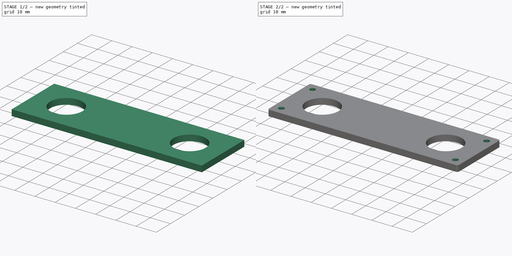
[diagram: build sequence overview — one tinted view per stage of 2, left to right]
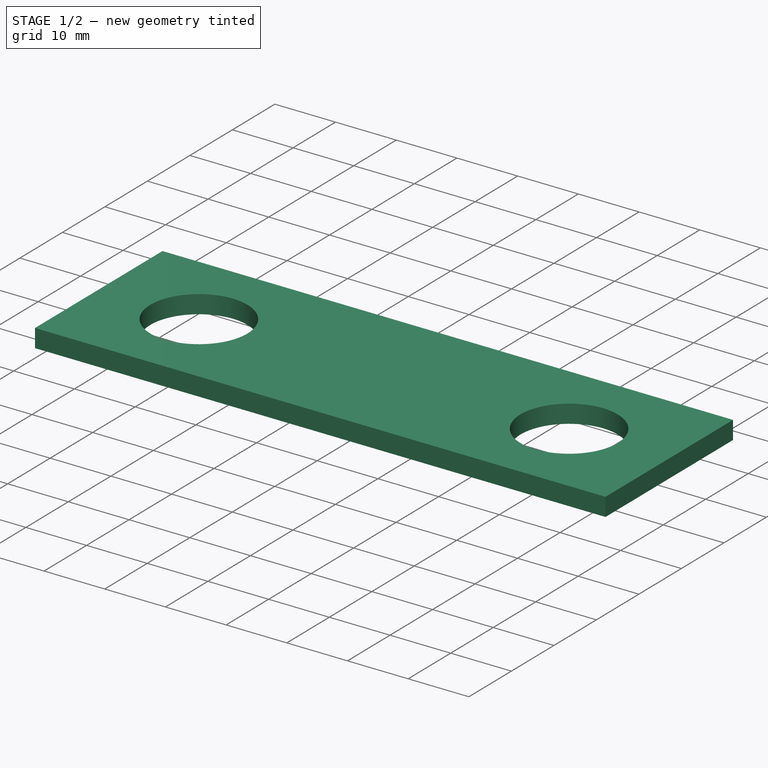
[diagram: stage 1 of 2 — iso view after this stage's code; geometry added in this stage tinted green]
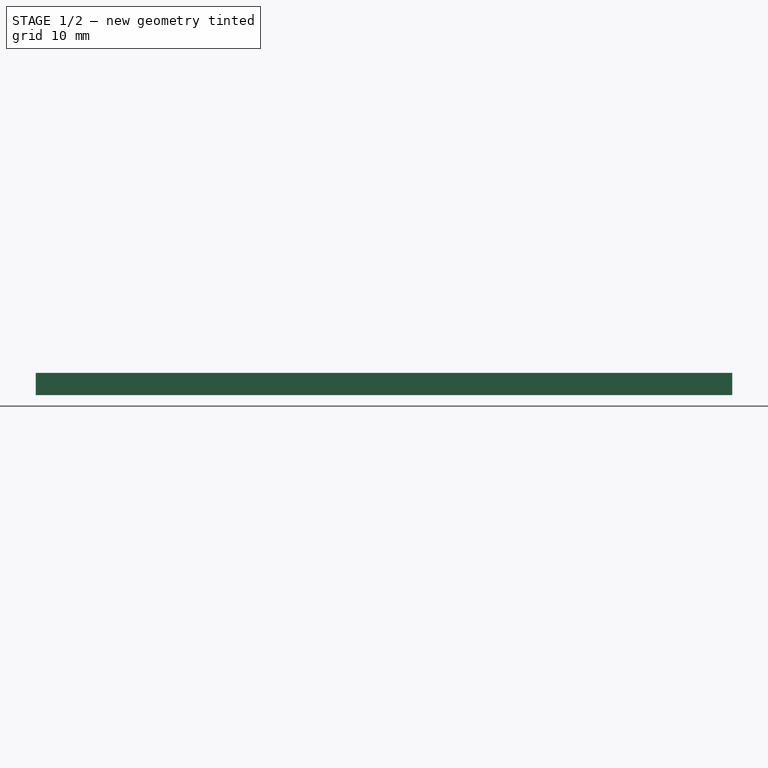
[diagram: stage 1 of 2 — front view after this stage's code; geometry added in this stage tinted green]
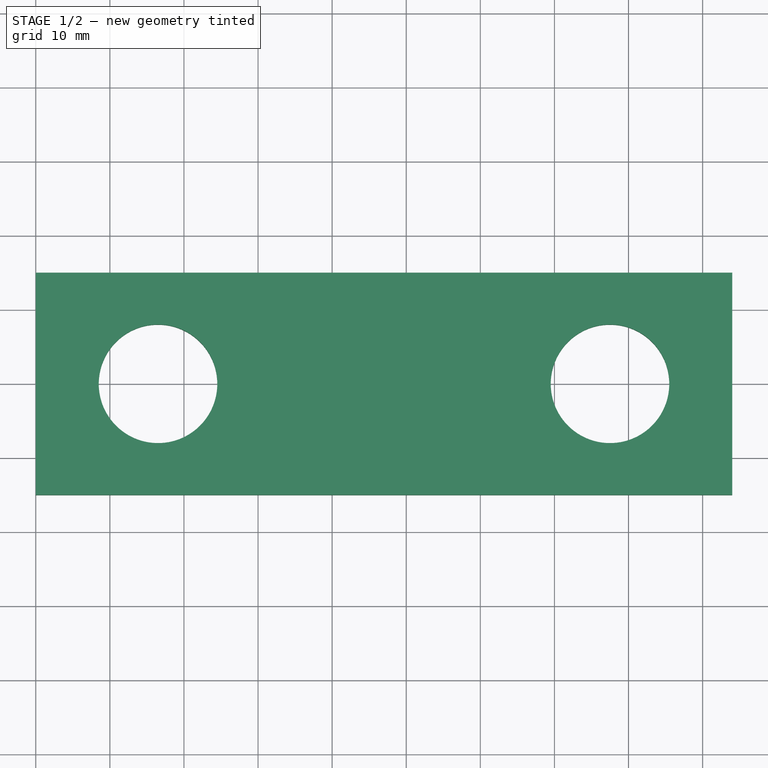
[diagram: stage 1 of 2 — top view after this stage's code; geometry added in this stage tinted green]
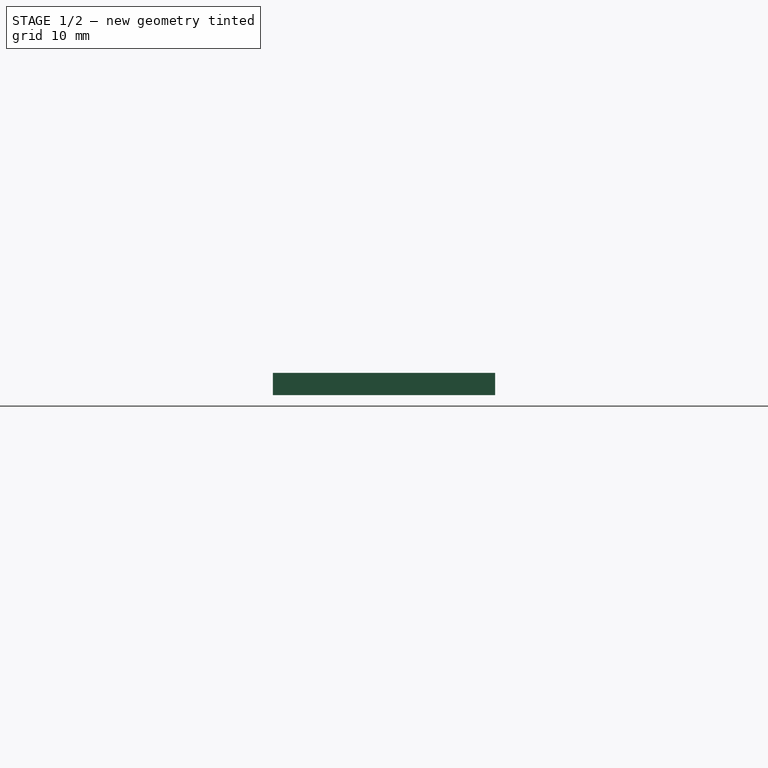
[diagram: stage 1 of 2 — right view after this stage's code; geometry added in this stage tinted green]
FCSTD DOCUMENT  (FreeCAD 0.19R24267 +148 (Git))
Label: elp_top_case
License: All rights reserved
LicenseURL: http://en.wikipedia.org/wiki/All_rights_reserved
objects: Sketcher::SketchObject×3, PartDesign::Hole×2, PartDesign::Pad×1, PartDesign::Fillet×1, PartDesign::Body×1
note: 12 computed .brp shape members not serialized (recipe doc carries the construction recipe); baked Part::Feature solids carry a one-line shape summary decoded from their .brp

FEATURE [Sketcher::SketchObject] Sketch006
  FullyConstrained = true
  MapMode = 5
  Placement = pos=(0,0,-13) rot=(1,0,0;3.14159rad)
  sketch-geometry (4):
    g0: LineSegment StartX=60 StartY=15 StartZ=0 EndX=154 EndY=15 EndZ=0
    g1: LineSegment StartX=60 StartY=-15 StartZ=0 EndX=154 EndY=-15 EndZ=0
    g2: LineSegment StartX=154 StartY=15 StartZ=0 EndX=154 EndY=-15 EndZ=0
    g3: LineSegment StartX=60 StartY=15 StartZ=0 EndX=60 EndY=-15 EndZ=0
  constraints (12):
    c: Horizontal(g0)
    c: Horizontal(g1)
    c: Vertical(g2)
    c: Vertical(g3)
    c: Coincident(g0,g3)
    c: Coincident(g1,g3)
    c: Coincident(g1,g2)
    c: Coincident(g2,g0)
    c: DistanceX(g1,g1) = 94
    c: DistanceY(g2,g2) = 30
    c: DistanceY(g1,g-1) = 15
    c: DistanceX(g-1,g1) = 60
FEATURE [PartDesign::Pad] Pad002
  Direction = (1,1,1)
  Length = 3
  Length2 = 100
  Placement = pos=(0,0,-13) rot=(1,0,0;3.14159rad)
  Profile = -> Sketch006
  Reversed = true
  Type = 0
FEATURE [Sketcher::SketchObject] Sketch007  label="holes"
  FullyConstrained = true
  MapMode = 5
  Placement = pos=(0,0,-13) rot=(1,0,0;3.14159rad)
  Support = -> [Pad002]
  sketch-geometry (5):
    g0: GeomPoint X=107 Y=0 Z=0
    g1: Circle CenterX=64 CenterY=-11 CenterZ=0 NormalX=0 NormalY=0 NormalZ=1 AngleXU=0 Radius=1
    g2: Circle CenterX=64 CenterY=11 CenterZ=0 NormalX=0 NormalY=0 NormalZ=1 AngleXU=0 Radius=1
    g3: Circle CenterX=150 CenterY=11 CenterZ=0 NormalX=0 NormalY=0 NormalZ=1 AngleXU=0 Radius=1
    g4: Circle CenterX=150 CenterY=-11 CenterZ=0 NormalX=0 NormalY=0 NormalZ=1 AngleXU=0 Radius=1
  constraints (14):
    c: PointOnObject(g0,g-1)
    c: DistanceX(g-1,g0) = 107
    c: Radius(g1) = 1
    c: Equal(g1,g2) = 1
    c: Equal(g1,g3) = 1
    c: Equal(g1,g4) = 1
    c: DistanceX(g1,g0) = 43
    c: DistanceX(g2,g0) = 43
    c: DistanceX(g0,g3) = 43
    c: DistanceX(g0,g4) = 43
    c: DistanceY(g4,g0) = 11
    c: DistanceY(g0,g3) = 11
    c: DistanceY(g1,g0) = 11
    c: DistanceY(g0,g2) = 11
FEATURE [Sketcher::SketchObject] Sketch008
  FullyConstrained = false
  MapMode = 5
  Placement = pos=(0,0,-10) rot=(0,0,1;0rad)
  Support = -> [Pad002]
  sketch-geometry (4):
    g0: Circle CenterX=76.5 CenterY=0 CenterZ=0 NormalX=0 NormalY=0 NormalZ=1 AngleXU=0 Radius=8
    g1: Circle CenterX=137.5 CenterY=0 CenterZ=0 NormalX=0 NormalY=0 NormalZ=1 AngleXU=0 Radius=8
    g2: GeomPoint X=107 Y=0 Z=0
    g3: GeomPoint X=68.5 Y=6.72582e-05 Z=0
  constraints (9):
    c: Radius(g0) = 8
    c: Equal(g0,g1) = 7
    c: PointOnObject(g1,g-1)
    c: PointOnObject(g2,g-1)
    c: DistanceY(g0,g2) = 0
    c: DistanceX(g0,g2) = 30.5
    c: PointOnObject(g3,g0)
    c: DistanceX(g-1,g2) = 107
    c: DistanceX(g2,g1) = 30.5
FEATURE [PartDesign::Hole] Hole002
  BaseFeature = -> Pad002
  Depth = 25
  DepthType = 0
  Diameter = 16
  DrillForDepth = false
  DrillPoint = 1
  DrillPointAngle = 118
  HoleCutCountersinkAngle = 90
  HoleCutCustomValues = false
  HoleCutDepth = 0
  HoleCutDiameter = 16.1
  HoleCutType = 0
  ModelActualThread = false
  Placement = pos=(0,0,-13) rot=(1,0,0;3.14159rad)
  Profile = -> Sketch008
  Tapered = false
  TaperedAngle = 90
  ThreadAngle = 0
  ThreadClass = 0
  ThreadCutOffInner = 0
  ThreadCutOffOuter = 0
  ThreadDirection = 0
  ThreadFit = 0
  ThreadPitch = 0
  ThreadSize = 0
  ThreadType = 0
  Threaded = false
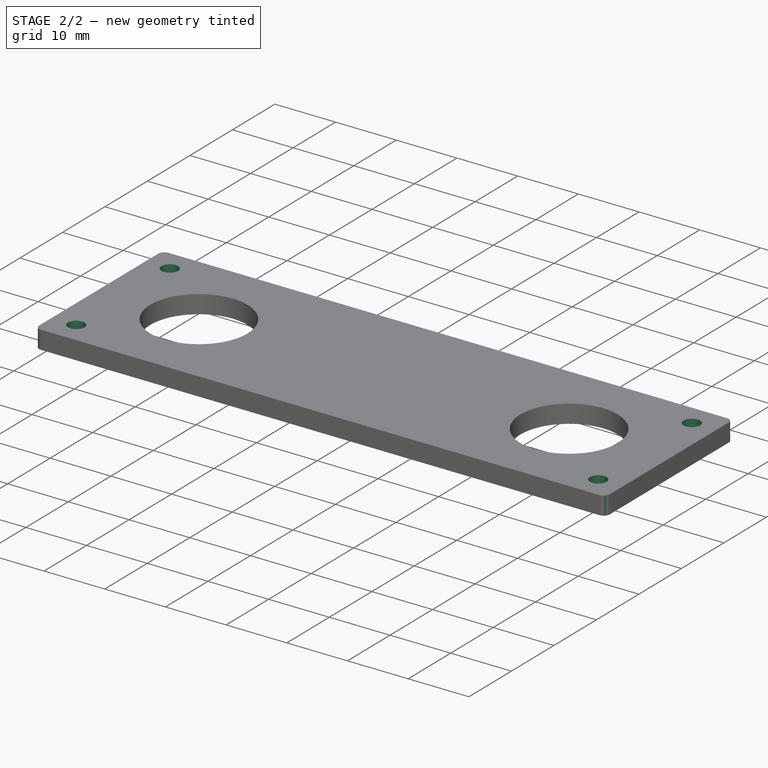
[diagram: stage 2 of 2 — iso view after this stage's code; geometry added in this stage tinted green]
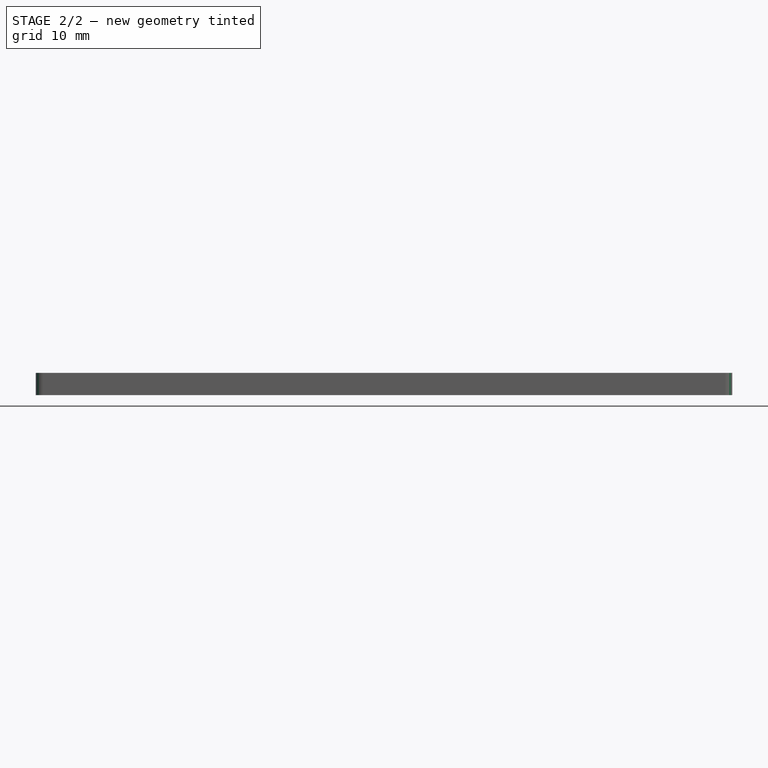
[diagram: stage 2 of 2 — front view after this stage's code; geometry added in this stage tinted green]
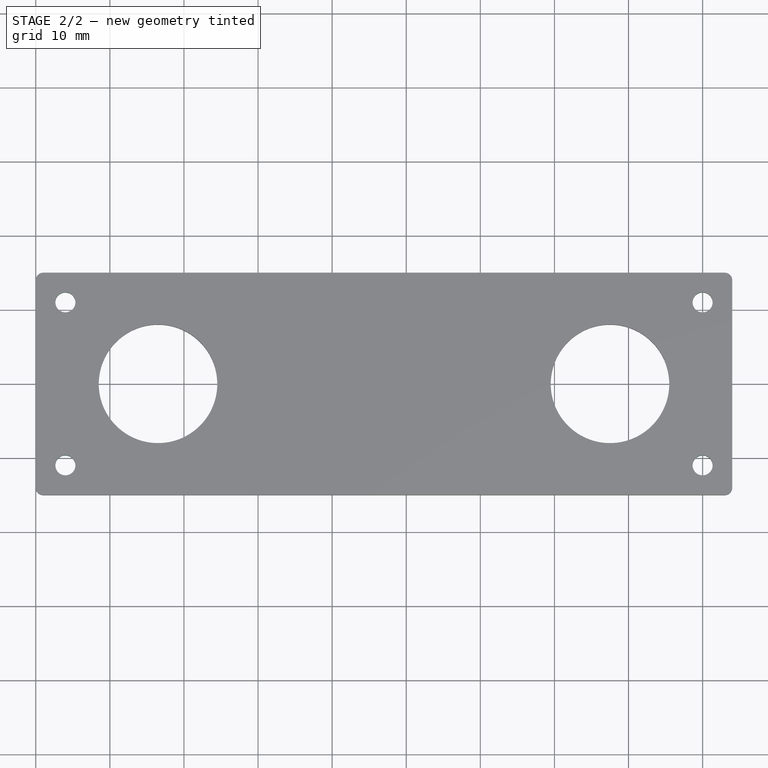
[diagram: stage 2 of 2 — top view after this stage's code; geometry added in this stage tinted green]
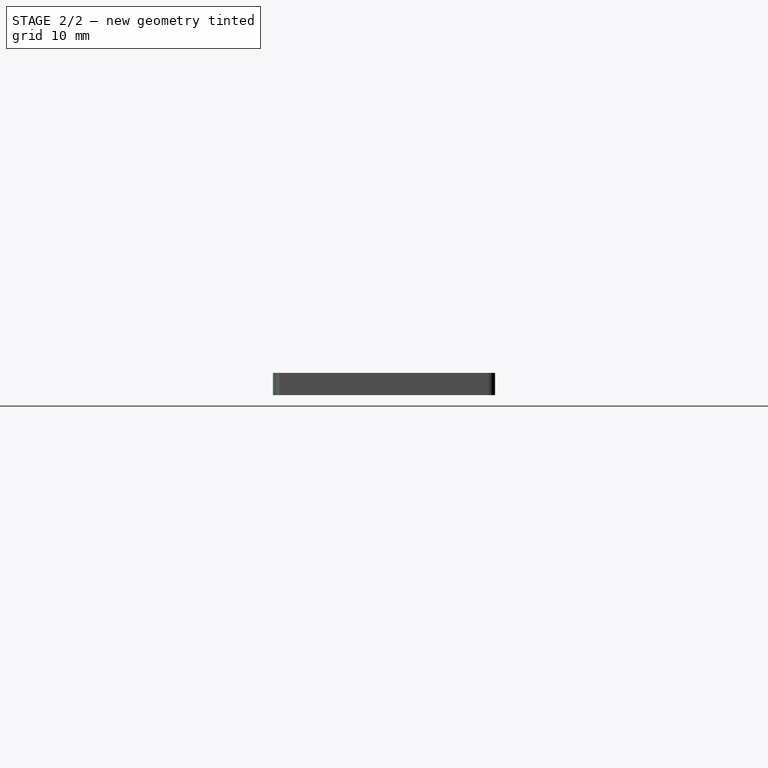
[diagram: stage 2 of 2 — right view after this stage's code; geometry added in this stage tinted green]
FEATURE [PartDesign::Hole] Hole003
  BaseFeature = -> Hole002
  Depth = 25
  DepthType = 0
  Diameter = 2.7
  DrillForDepth = false
  DrillPoint = 1
  DrillPointAngle = 118
  HoleCutCountersinkAngle = 90
  HoleCutCustomValues = false
  HoleCutDepth = 0
  HoleCutDiameter = 6.1
  HoleCutType = 0
  ModelActualThread = false
  Placement = pos=(0,0,-13) rot=(1,0,0;3.14159rad)
  Profile = -> Sketch007
  Tapered = false
  TaperedAngle = 90
  ThreadAngle = 0
  ThreadClass = 0
  ThreadCutOffInner = 0
  ThreadCutOffOuter = 0
  ThreadDirection = 0
  ThreadFit = 0
  ThreadPitch = 0
  ThreadSize = 0
  ThreadType = 0
  Threaded = false
FEATURE [PartDesign::Fillet] Fillet001
  Base = -> Hole003 [Edge2,Edge8,Edge5,Edge1]
  BaseFeature = -> Hole003
  Placement = pos=(0,0,-13) rot=(1,0,0;3.14159rad)
  Radius = 1
  SupportTransform = false
FEATURE [PartDesign::Body] Body001
  Group = -> [Sketch006,Pad002,Sketch007,Sketch008,Hole002,Hole003,Fillet001]
  Origin = -> Origin001
  Placement = pos=(2e-15,0,-13) rot=(0,1,0;3.14159rad)
  Tip = -> Fillet001
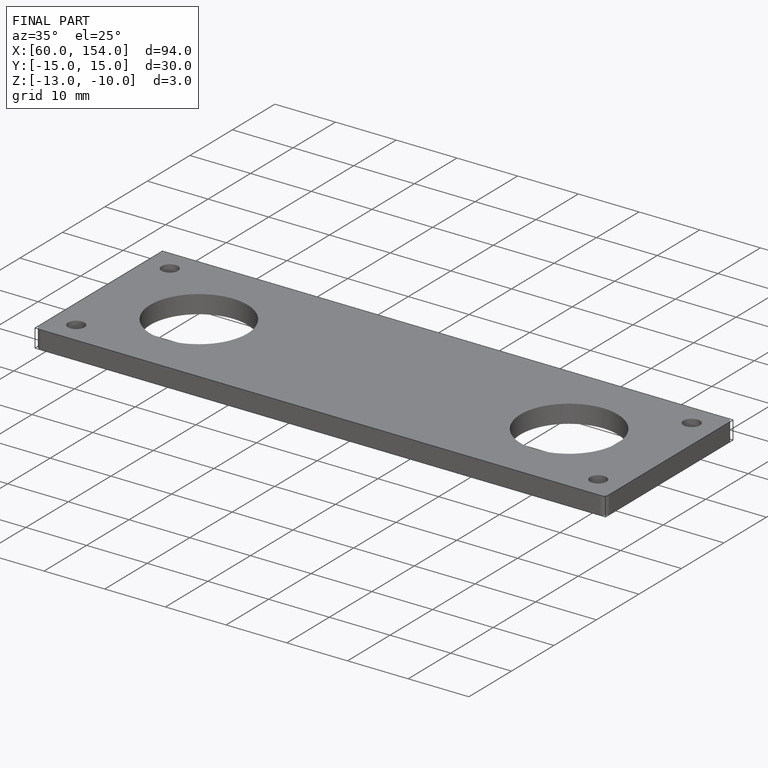
[diagram: finished part — iso view with bounding-box wireframe]
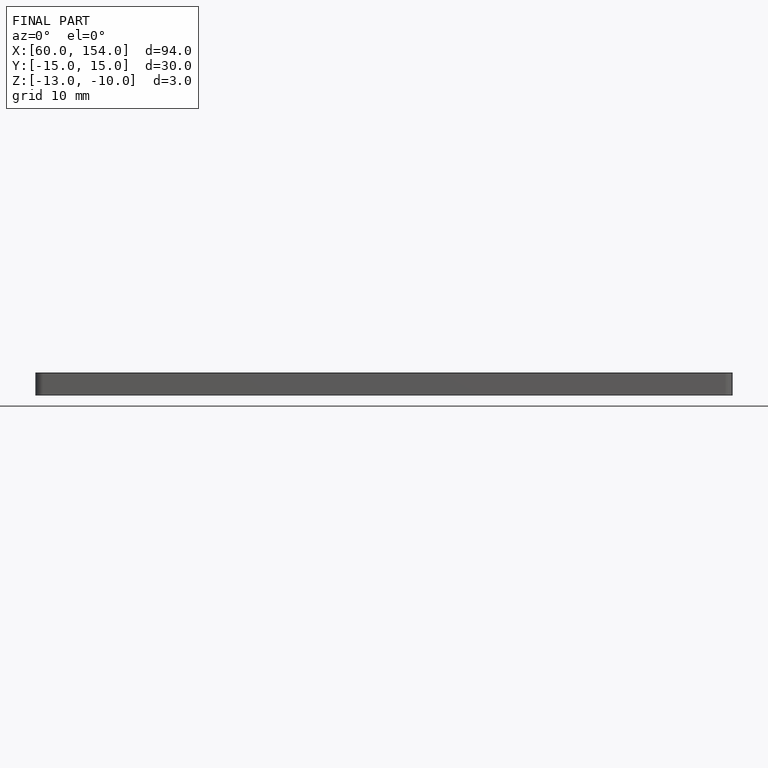
[diagram: finished part — front view with bounding-box wireframe]
